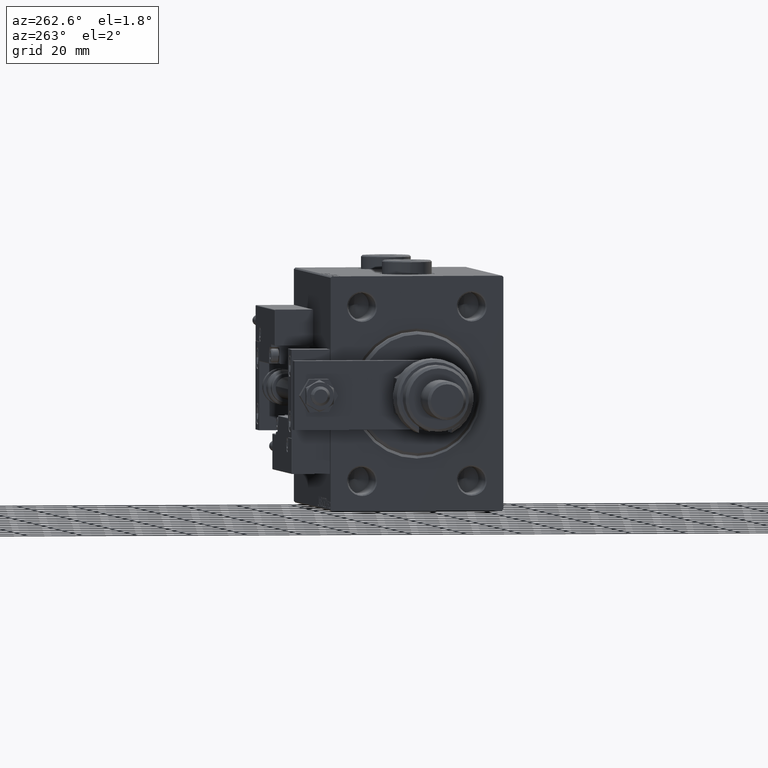
[diagram: clean part render]
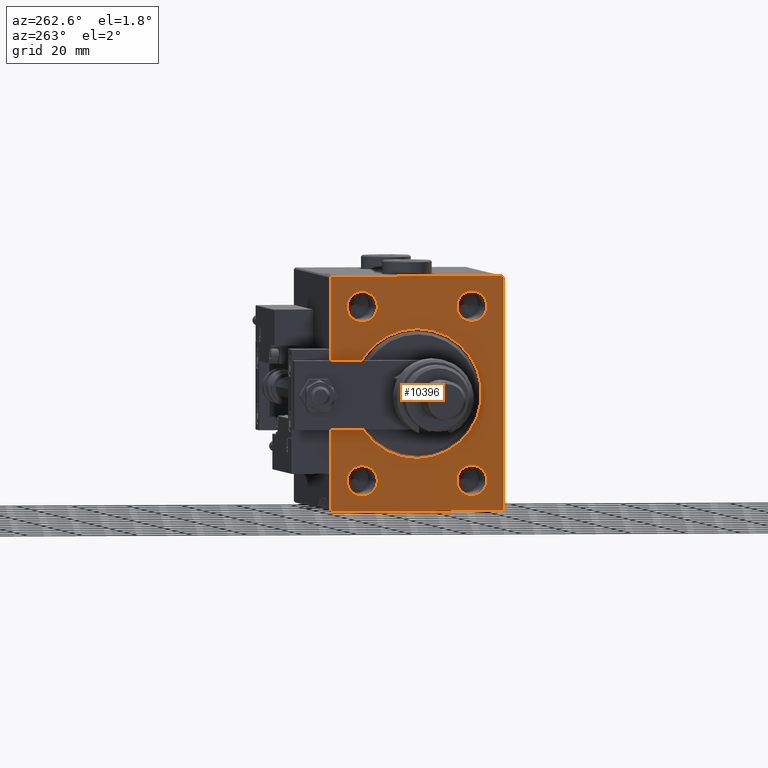
[diagram: same view with one face highlighted and labeled with its STEP entity id]
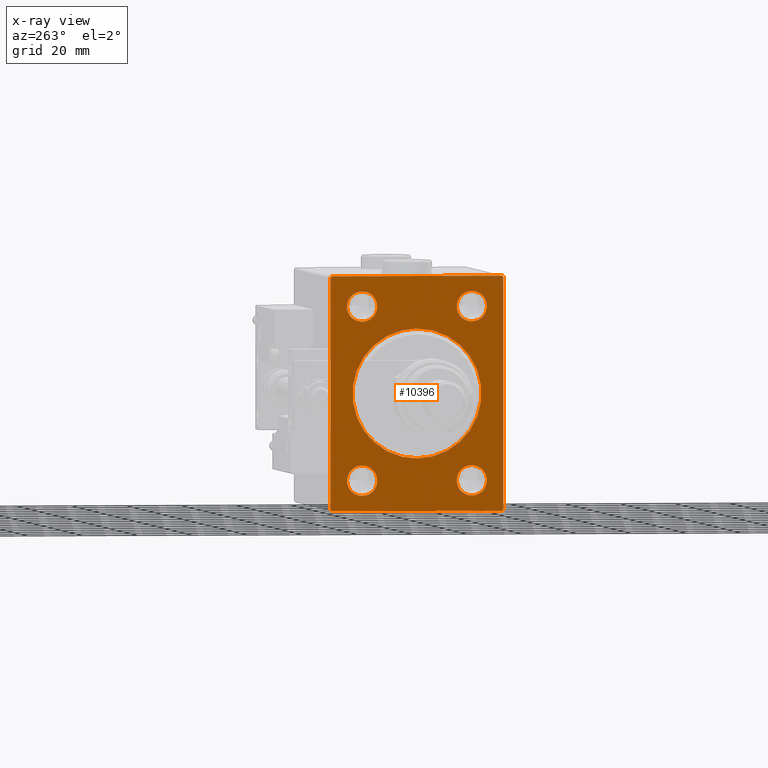
[diagram: x-ray of the same camera — body ghosted, the highlighted face saturated]
A machine part, auxiliary view. The second image highlights one B-rep face of the part: STEP entity #10396.
The next image is the same camera in x-ray: the body ghosted, the highlighted face saturated — about 0% of this face is hidden behind the body in this view.
In plain terms, the highlighted planar face has unit normal (1, 0, 0).
Its self-contained STEP definition (entity closure, byte-faithful):
#592 = VERTEX_POINT ( 'NONE', #47917 ) ;
#803 = VERTEX_POINT ( 'NONE', #40328 ) ;
#1171 = AXIS2_PLACEMENT_3D ( 'NONE', #28736, #41621, #3269 ) ;
#1327 = LINE ( 'NONE', #34406, #17594 ) ;
#1374 = CARTESIAN_POINT ( 'NONE',  ( 0.000000000000000000, -31.00000000000002842, 42.49999999999998579 ) ) ;
#1601 = VERTEX_POINT ( 'NONE', #1374 ) ;
#1730 = ORIENTED_EDGE ( 'NONE', *, *, #47024, .T. ) ;
#1780 = VERTEX_POINT ( 'NONE', #24866 ) ;
#1828 = ORIENTED_EDGE ( 'NONE', *, *, #18741, .T. ) ;
#1905 = EDGE_CURVE ( 'NONE', #21720, #36948, #24661, .T. ) ;
#2073 = CIRCLE ( 'NONE', #30597, 5.499999999999991118 ) ;
#2125 = DIRECTION ( 'NONE',  ( 0.000000000000000000, -0.7071067811865378028, -0.7071067811865573427 ) ) ;
#2553 = VECTOR ( 'NONE', #38833, 1000.000000000000000 ) ;
#2704 = CARTESIAN_POINT ( 'NONE',  ( 0.000000000000000000, -20.00000000000000355, 31.50000000000000000 ) ) ;
#2785 = CARTESIAN_POINT ( 'NONE',  ( 0.000000000000000000, 31.00000000000000000, 42.49999999999999289 ) ) ;
#3269 = DIRECTION ( 'NONE',  ( 0.000000000000000000, 0.000000000000000000, -1.000000000000000000 ) ) ;
#3925 = EDGE_CURVE ( 'NONE', #29809, #25754, #1327, .T. ) ;
#5122 = VERTEX_POINT ( 'NONE', #18023 ) ;
#5769 = CARTESIAN_POINT ( 'NONE',  ( 0.000000000000000000, 31.50000000000001421, -42.00000000000000711 ) ) ;
#5874 = AXIS2_PLACEMENT_3D ( 'NONE', #52003, #31259, #48079 ) ;
#5933 = AXIS2_PLACEMENT_3D ( 'NONE', #15729, #7874, #33648 ) ;
#6254 = DIRECTION ( 'NONE',  ( 1.000000000000000000, 0.000000000000000000, 0.000000000000000000 ) ) ;
#6514 = VECTOR ( 'NONE', #46763, 1000.000000000000000 ) ;
#6537 = CARTESIAN_POINT ( 'NONE',  ( 0.000000000000000000, -20.00000000000000355, -31.50000000000000000 ) ) ;
#6607 = CARTESIAN_POINT ( 'NONE',  ( 0.000000000000000000, -20.00000000000000355, -31.50000000000000000 ) ) ;
#7041 = DIRECTION ( 'NONE',  ( 1.000000000000000000, 0.000000000000000000, 0.000000000000000000 ) ) ;
#7064 = LINE ( 'NONE', #41759, #51108 ) ;
#7133 = ORIENTED_EDGE ( 'NONE', *, *, #11496, .T. ) ;
#7211 = FACE_BOUND ( 'NONE', #50700, .T. ) ;
#7478 = EDGE_LOOP ( 'NONE', ( #38846, #49259 ) ) ;
#7751 = FACE_BOUND ( 'NONE', #7478, .T. ) ;
#7874 = DIRECTION ( 'NONE',  ( 1.000000000000000000, 0.000000000000000000, 0.000000000000000000 ) ) ;
#8098 = CIRCLE ( 'NONE', #46551, 23.50000000000001776 ) ;
#8932 = CARTESIAN_POINT ( 'NONE',  ( 0.000000000000000000, 19.99999999999999645, -31.50000000000000000 ) ) ;
#10396 = ADVANCED_FACE ( 'NONE', ( #42176, #41904, #20617, #7211, #7751, #50583 ), #29574, .F. ) ;
#10511 = EDGE_LOOP ( 'NONE', ( #38838, #1730 ) ) ;
#10948 = VECTOR ( 'NONE', #34300, 1000.000000000000000 ) ;
#11364 = EDGE_CURVE ( 'NONE', #29809, #31910, #13068, .T. ) ;
#11496 = EDGE_CURVE ( 'NONE', #50532, #31910, #40468, .T. ) ;
#11740 = ORIENTED_EDGE ( 'NONE', *, *, #3925, .T. ) ;
#13068 = LINE ( 'NONE', #25670, #2553 ) ;
#13112 = DIRECTION ( 'NONE',  ( -0.000000000000000000, -0.7071067811865622277, 0.7071067811865328068 ) ) ;
#13950 = VERTEX_POINT ( 'NONE', #43548 ) ;
#14081 = ORIENTED_EDGE ( 'NONE', *, *, #36094, .F. ) ;
#14230 = CARTESIAN_POINT ( 'NONE',  ( 0.000000000000000000, 19.99999999999999645, 31.50000000000000000 ) ) ;
#14386 = CIRCLE ( 'NONE', #35005, 5.499999999999991118 ) ;
#14703 = EDGE_LOOP ( 'NONE', ( #26086, #53249 ) ) ;
#15066 = EDGE_LOOP ( 'NONE', ( #1828, #45416 ) ) ;
#15729 = CARTESIAN_POINT ( 'NONE',  ( 0.000000000000000000, 19.99999999999999645, -31.50000000000000000 ) ) ;
#15732 = DIRECTION ( 'NONE',  ( 0.000000000000000000, 0.000000000000000000, -1.000000000000000000 ) ) ;
#16137 = CIRCLE ( 'NONE', #47446, 5.499999999999991118 ) ;
#16353 = DIRECTION ( 'NONE',  ( 0.000000000000000000, 0.000000000000000000, -1.000000000000000000 ) ) ;
#16357 = ORIENTED_EDGE ( 'NONE', *, *, #38522, .F. ) ;
#17387 = DIRECTION ( 'NONE',  ( -0.000000000000000000, 0.7071067811865573427, -0.7071067811865378028 ) ) ;
#17486 = CARTESIAN_POINT ( 'NONE',  ( 0.000000000000000000, 31.50000000000001421, -42.50000000000000711 ) ) ;
#17594 = VECTOR ( 'NONE', #13112, 1000.000000000000000 ) ;
#18023 = CARTESIAN_POINT ( 'NONE',  ( 0.000000000000000000, 19.99999999999999645, -26.00000000000001066 ) ) ;
#18741 = EDGE_CURVE ( 'NONE', #1780, #13950, #8098, .T. ) ;
#18845 = DIRECTION ( 'NONE',  ( 0.000000000000000000, 0.000000000000000000, -1.000000000000000000 ) ) ;
#18933 = VECTOR ( 'NONE', #30344, 1000.000000000000114 ) ;
#18952 = CARTESIAN_POINT ( 'NONE',  ( 0.000000000000000000, -20.00000000000000355, -26.00000000000001066 ) ) ;
#18963 = CIRCLE ( 'NONE', #52025, 5.499999999999991118 ) ;
#19650 = VERTEX_POINT ( 'NONE', #2785 ) ;
#19822 = CARTESIAN_POINT ( 'NONE',  ( 0.000000000000000000, -31.50000000000000000, 42.00000000000000000 ) ) ;
#20203 = CARTESIAN_POINT ( 'NONE',  ( 0.000000000000000000, 19.99999999999999645, -36.99999999999999289 ) ) ;
#20350 = CARTESIAN_POINT ( 'NONE',  ( 0.000000000000000000, 0.000000000000000000, 0.000000000000000000 ) ) ;
#20617 = FACE_BOUND ( 'NONE', #14703, .T. ) ;
#21032 = EDGE_CURVE ( 'NONE', #52564, #803, #18963, .T. ) ;
#21720 = VERTEX_POINT ( 'NONE', #40886 ) ;
#21890 = AXIS2_PLACEMENT_3D ( 'NONE', #6537, #6254, #18845 ) ;
#22341 = DIRECTION ( 'NONE',  ( 1.000000000000000000, 0.000000000000000000, 0.000000000000000000 ) ) ;
#22914 = CIRCLE ( 'NONE', #5933, 5.499999999999991118 ) ;
#23063 = EDGE_CURVE ( 'NONE', #19650, #33976, #42024, .T. ) ;
#23929 = ORIENTED_EDGE ( 'NONE', *, *, #38999, .F. ) ;
#24193 = DIRECTION ( 'NONE',  ( 1.000000000000000000, 0.000000000000000000, 0.000000000000000000 ) ) ;
#24329 = EDGE_CURVE ( 'NONE', #37590, #592, #51262, .T. ) ;
#24661 = CIRCLE ( 'NONE', #5874, 5.499999999999991118 ) ;
#24866 = CARTESIAN_POINT ( 'NONE',  ( 0.000000000000000000, 0.000000000000000000, 23.50000000000001776 ) ) ;
#25670 = CARTESIAN_POINT ( 'NONE',  ( 0.000000000000000000, -31.50000000000000000, -42.50000000000000711 ) ) ;
#25754 = VERTEX_POINT ( 'NONE', #36277 ) ;
#26086 = ORIENTED_EDGE ( 'NONE', *, *, #34461, .T. ) ;
#26383 = CARTESIAN_POINT ( 'NONE',  ( 0.000000000000000000, 31.50000000000001421, -42.00000000000000711 ) ) ;
#26676 = VECTOR ( 'NONE', #2125, 1000.000000000000000 ) ;
#27423 = VERTEX_POINT ( 'NONE', #19822 ) ;
#27628 = EDGE_CURVE ( 'NONE', #13950, #1780, #38749, .T. ) ;
#27874 = DIRECTION ( 'NONE',  ( 1.000000000000000000, 0.000000000000000000, 0.000000000000000000 ) ) ;
#27998 = ORIENTED_EDGE ( 'NONE', *, *, #23063, .T. ) ;
#28418 = DIRECTION ( 'NONE',  ( 0.000000000000000000, 0.000000000000000000, -1.000000000000000000 ) ) ;
#28736 = CARTESIAN_POINT ( 'NONE',  ( 0.000000000000000000, 0.000000000000000000, 0.000000000000000000 ) ) ;
#29574 = PLANE ( 'NONE',  #48116 ) ;
#29809 = VERTEX_POINT ( 'NONE', #51363 ) ;
#30344 = DIRECTION ( 'NONE',  ( -0.000000000000000000, 0.7071067811865376918, 0.7071067811865573427 ) ) ;
#30597 = AXIS2_PLACEMENT_3D ( 'NONE', #8932, #38609, #51770 ) ;
#31259 = DIRECTION ( 'NONE',  ( 1.000000000000000000, 0.000000000000000000, 0.000000000000000000 ) ) ;
#31301 = DIRECTION ( 'NONE',  ( 0.000000000000000000, 0.000000000000000000, -1.000000000000000000 ) ) ;
#31334 = CARTESIAN_POINT ( 'NONE',  ( 0.000000000000000000, 31.00000000000002842, -42.50000000000000711 ) ) ;
#31910 = VERTEX_POINT ( 'NONE', #31334 ) ;
#32444 = VECTOR ( 'NONE', #17387, 1000.000000000000000 ) ;
#32451 = CARTESIAN_POINT ( 'NONE',  ( 0.000000000000000000, 31.50000000000000000, 42.00000000000000711 ) ) ;
#33030 = CARTESIAN_POINT ( 'NONE',  ( 0.000000000000000000, -20.00000000000000355, 36.99999999999999289 ) ) ;
#33367 = CARTESIAN_POINT ( 'NONE',  ( 0.000000000000000000, 31.00000000000000000, 42.49999999999999289 ) ) ;
#33648 = DIRECTION ( 'NONE',  ( 0.000000000000000000, 0.000000000000000000, -1.000000000000000000 ) ) ;
#33976 = VERTEX_POINT ( 'NONE', #32451 ) ;
#34286 = LINE ( 'NONE', #43502, #18933 ) ;
#34300 = DIRECTION ( 'NONE',  ( 0.000000000000000000, -1.632680918566406547E-16, 1.000000000000000000 ) ) ;
#34406 = CARTESIAN_POINT ( 'NONE',  ( 0.000000000000000000, -31.00000000000000000, -42.50000000000000711 ) ) ;
#34461 = EDGE_CURVE ( 'NONE', #36948, #21720, #16137, .T. ) ;
#34561 = CARTESIAN_POINT ( 'NONE',  ( 0.000000000000000000, 19.99999999999999645, 26.00000000000001066 ) ) ;
#35005 = AXIS2_PLACEMENT_3D ( 'NONE', #37628, #24193, #16353 ) ;
#35651 = ORIENTED_EDGE ( 'NONE', *, *, #11364, .F. ) ;
#35825 = EDGE_CURVE ( 'NONE', #592, #37590, #14386, .T. ) ;
#36094 = EDGE_CURVE ( 'NONE', #27423, #25754, #7064, .T. ) ;
#36277 = CARTESIAN_POINT ( 'NONE',  ( 0.000000000000000000, -31.50000000000000000, -42.00000000000002842 ) ) ;
#36557 = VERTEX_POINT ( 'NONE', #20203 ) ;
#36948 = VERTEX_POINT ( 'NONE', #33030 ) ;
#37570 = EDGE_CURVE ( 'NONE', #27423, #1601, #34286, .T. ) ;
#37590 = VERTEX_POINT ( 'NONE', #34561 ) ;
#37628 = CARTESIAN_POINT ( 'NONE',  ( 0.000000000000000000, 19.99999999999999645, 31.50000000000000000 ) ) ;
#37964 = DIRECTION ( 'NONE',  ( 1.000000000000000000, 0.000000000000000000, 0.000000000000000000 ) ) ;
#38481 = LINE ( 'NONE', #17486, #10948 ) ;
#38522 = EDGE_CURVE ( 'NONE', #50532, #33976, #38481, .T. ) ;
#38609 = DIRECTION ( 'NONE',  ( 1.000000000000000000, 0.000000000000000000, 0.000000000000000000 ) ) ;
#38749 = CIRCLE ( 'NONE', #1171, 23.50000000000001776 ) ;
#38833 = DIRECTION ( 'NONE',  ( 0.000000000000000000, 1.000000000000000000, 0.000000000000000000 ) ) ;
#38838 = ORIENTED_EDGE ( 'NONE', *, *, #21032, .T. ) ;
#38846 = ORIENTED_EDGE ( 'NONE', *, *, #53376, .T. ) ;
#38999 = EDGE_CURVE ( 'NONE', #19650, #1601, #42553, .T. ) ;
#40328 = CARTESIAN_POINT ( 'NONE',  ( 0.000000000000000000, -20.00000000000000355, -36.99999999999999289 ) ) ;
#40468 = LINE ( 'NONE', #5769, #26676 ) ;
#40698 = EDGE_CURVE ( 'NONE', #36557, #5122, #2073, .T. ) ;
#40886 = CARTESIAN_POINT ( 'NONE',  ( 0.000000000000000000, -20.00000000000000355, 26.00000000000001066 ) ) ;
#41181 = DIRECTION ( 'NONE',  ( 0.000000000000000000, 0.000000000000000000, -1.000000000000000000 ) ) ;
#41315 = EDGE_LOOP ( 'NONE', ( #14081, #53430, #23929, #27998, #16357, #7133, #35651, #11740 ) ) ;
#41359 = DIRECTION ( 'NONE',  ( 0.000000000000000000, 0.000000000000000000, -1.000000000000000000 ) ) ;
#41597 = CIRCLE ( 'NONE', #21890, 5.499999999999991118 ) ;
#41621 = DIRECTION ( 'NONE',  ( 1.000000000000000000, 0.000000000000000000, 0.000000000000000000 ) ) ;
#41759 = CARTESIAN_POINT ( 'NONE',  ( 0.000000000000000000, -31.50000000000000000, 42.49999999999998579 ) ) ;
#41904 = FACE_BOUND ( 'NONE', #10511, .T. ) ;
#42024 = LINE ( 'NONE', #33367, #32444 ) ;
#42176 = FACE_BOUND ( 'NONE', #15066, .T. ) ;
#42553 = LINE ( 'NONE', #47041, #6514 ) ;
#43502 = CARTESIAN_POINT ( 'NONE',  ( 0.000000000000000000, -31.50000000000000000, 42.00000000000000000 ) ) ;
#43548 = CARTESIAN_POINT ( 'NONE',  ( 0.000000000000000000, 2.877919977996282293E-15, -23.50000000000001776 ) ) ;
#43834 = ORIENTED_EDGE ( 'NONE', *, *, #24329, .T. ) ;
#44110 = ORIENTED_EDGE ( 'NONE', *, *, #35825, .T. ) ;
#45394 = CARTESIAN_POINT ( 'NONE',  ( 0.000000000000000000, 0.000000000000000000, 0.000000000000000000 ) ) ;
#45416 = ORIENTED_EDGE ( 'NONE', *, *, #27628, .T. ) ;
#45564 = DIRECTION ( 'NONE',  ( 1.000000000000000000, 0.000000000000000000, 0.000000000000000000 ) ) ;
#45818 = DIRECTION ( 'NONE',  ( 0.000000000000000000, 0.000000000000000000, -1.000000000000000000 ) ) ;
#46551 = AXIS2_PLACEMENT_3D ( 'NONE', #45394, #7041, #41181 ) ;
#46763 = DIRECTION ( 'NONE',  ( 0.000000000000000000, -1.000000000000000000, -1.101411730778925171E-16 ) ) ;
#47024 = EDGE_CURVE ( 'NONE', #803, #52564, #41597, .T. ) ;
#47041 = CARTESIAN_POINT ( 'NONE',  ( 0.000000000000000000, 31.50000000000000000, 42.49999999999999289 ) ) ;
#47446 = AXIS2_PLACEMENT_3D ( 'NONE', #2704, #37964, #45818 ) ;
#47917 = CARTESIAN_POINT ( 'NONE',  ( 0.000000000000000000, 19.99999999999999645, 36.99999999999999289 ) ) ;
#48079 = DIRECTION ( 'NONE',  ( 0.000000000000000000, 0.000000000000000000, -1.000000000000000000 ) ) ;
#48116 = AXIS2_PLACEMENT_3D ( 'NONE', #20350, #45564, #41359 ) ;
#49259 = ORIENTED_EDGE ( 'NONE', *, *, #40698, .T. ) ;
#49466 = AXIS2_PLACEMENT_3D ( 'NONE', #14230, #22341, #31301 ) ;
#50532 = VERTEX_POINT ( 'NONE', #26383 ) ;
#50583 = FACE_OUTER_BOUND ( 'NONE', #41315, .T. ) ;
#50700 = EDGE_LOOP ( 'NONE', ( #44110, #43834 ) ) ;
#51108 = VECTOR ( 'NONE', #15732, 1000.000000000000000 ) ;
#51262 = CIRCLE ( 'NONE', #49466, 5.499999999999991118 ) ;
#51363 = CARTESIAN_POINT ( 'NONE',  ( 0.000000000000000000, -31.00000000000000000, -42.50000000000000711 ) ) ;
#51770 = DIRECTION ( 'NONE',  ( 0.000000000000000000, 0.000000000000000000, -1.000000000000000000 ) ) ;
#52003 = CARTESIAN_POINT ( 'NONE',  ( 0.000000000000000000, -20.00000000000000355, 31.50000000000000000 ) ) ;
#52025 = AXIS2_PLACEMENT_3D ( 'NONE', #6607, #27874, #28418 ) ;
#52564 = VERTEX_POINT ( 'NONE', #18952 ) ;
#53249 = ORIENTED_EDGE ( 'NONE', *, *, #1905, .T. ) ;
#53376 = EDGE_CURVE ( 'NONE', #5122, #36557, #22914, .T. ) ;
#53430 = ORIENTED_EDGE ( 'NONE', *, *, #37570, .T. ) ;